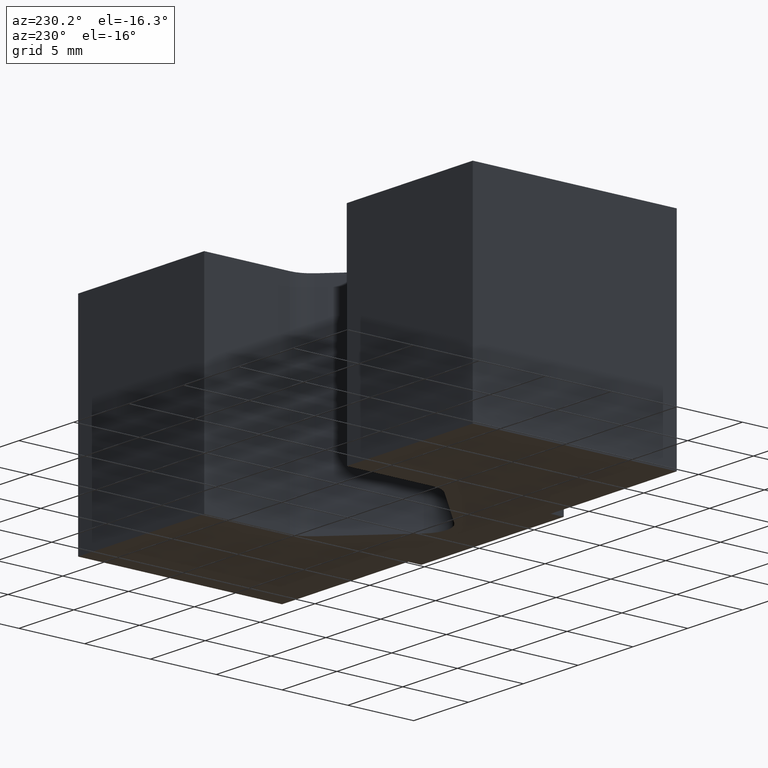
[diagram: clean part render]
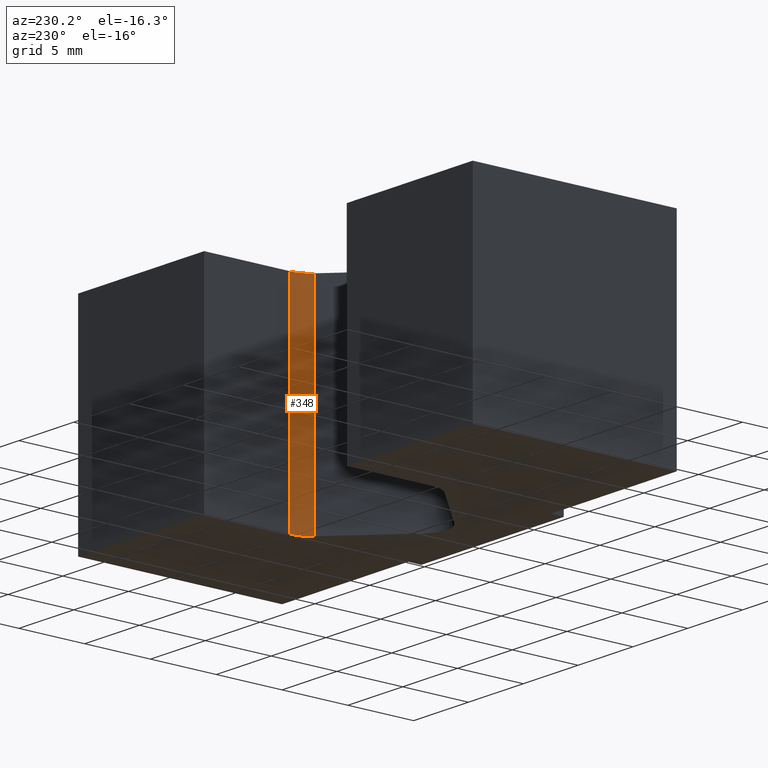
[diagram: same view with one face highlighted and labeled with its STEP entity id]
A machine part, auxiliary view. The second image highlights one B-rep face of the part: STEP entity #348.
In plain terms, the highlighted cylindrical surface (edge-blend (fillet) strip) has radius 2 mm, axis along (0, 0, 1).
Its self-contained STEP definition (entity closure, byte-faithful):
#16=CYLINDRICAL_SURFACE('',#394,2.);
#31=FACE_OUTER_BOUND('',#49,.T.);
#49=EDGE_LOOP('',(#285,#286,#287,#288));
#57=CIRCLE('',#380,2.);
#60=CIRCLE('',#395,2.);
#94=LINE('',#572,#136);
#95=LINE('',#576,#137);
#136=VECTOR('',#470,10.);
#137=VECTOR('',#475,10.);
#158=VERTEX_POINT('',#520);
#159=VERTEX_POINT('',#522);
#172=VERTEX_POINT('',#570);
#173=VERTEX_POINT('',#574);
#190=EDGE_CURVE('',#159,#158,#57,.T.);
#215=EDGE_CURVE('',#172,#158,#94,.T.);
#216=EDGE_CURVE('',#172,#173,#60,.T.);
#217=EDGE_CURVE('',#173,#159,#95,.T.);
#285=ORIENTED_EDGE('',*,*,#216,.T.);
#286=ORIENTED_EDGE('',*,*,#217,.T.);
#287=ORIENTED_EDGE('',*,*,#190,.T.);
#288=ORIENTED_EDGE('',*,*,#215,.F.);
#348=ADVANCED_FACE('',(#31),#16,.F.);
#380=AXIS2_PLACEMENT_3D('',#523,#420,#421);
#394=AXIS2_PLACEMENT_3D('',#573,#471,#472);
#395=AXIS2_PLACEMENT_3D('',#575,#473,#474);
#420=DIRECTION('center_axis',(0.,0.,-1.));
#421=DIRECTION('ref_axis',(0.707106781186548,-0.707106781186548,0.));
#470=DIRECTION('',(0.,0.,-1.));
#471=DIRECTION('center_axis',(0.,0.,1.));
#472=DIRECTION('ref_axis',(0.707106781186548,-0.707106781186548,0.));
#473=DIRECTION('center_axis',(0.,0.,1.));
#474=DIRECTION('ref_axis',(0.707106781186548,-0.707106781186548,0.));
#475=DIRECTION('',(0.,0.,-1.));
#520=CARTESIAN_POINT('',(5.9142135623731,7.5857864376269,-8.));
#522=CARTESIAN_POINT('',(6.5,9.,-8.));
#523=CARTESIAN_POINT('Origin',(4.5,9.,-8.));
#570=CARTESIAN_POINT('',(5.9142135623731,7.5857864376269,8.));
#572=CARTESIAN_POINT('',(5.9142135623731,7.5857864376269,0.));
#573=CARTESIAN_POINT('Origin',(4.5,9.,0.));
#574=CARTESIAN_POINT('',(6.5,9.,8.));
#575=CARTESIAN_POINT('Origin',(4.5,9.,8.));
#576=CARTESIAN_POINT('',(6.5,9.,0.));